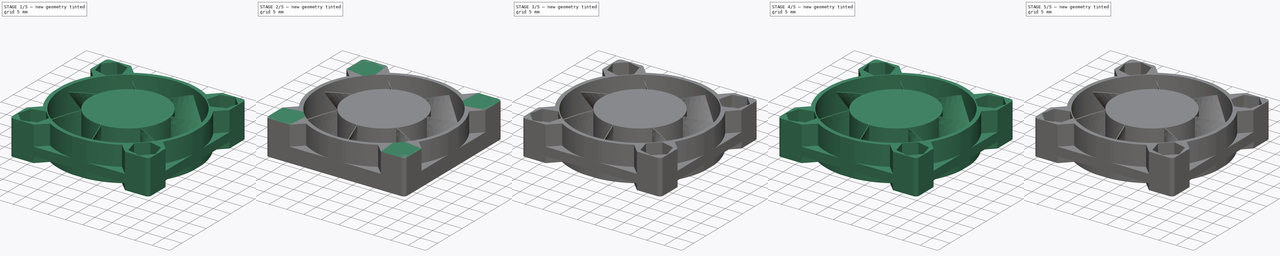
[diagram: build sequence overview — one tinted view per stage of 5, left to right]
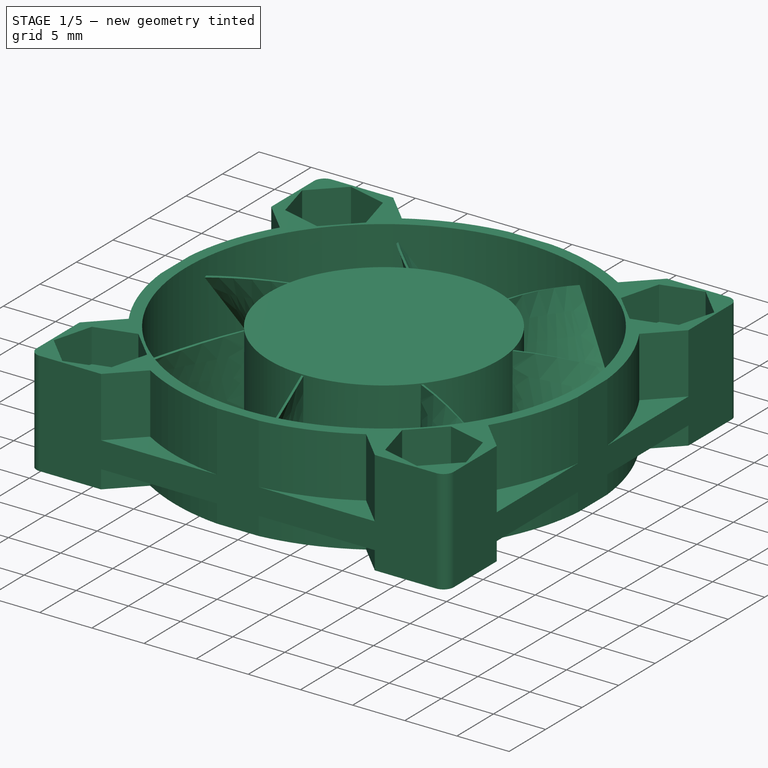
[diagram: stage 1 of 5 — iso view after this stage's code; geometry added in this stage tinted green]
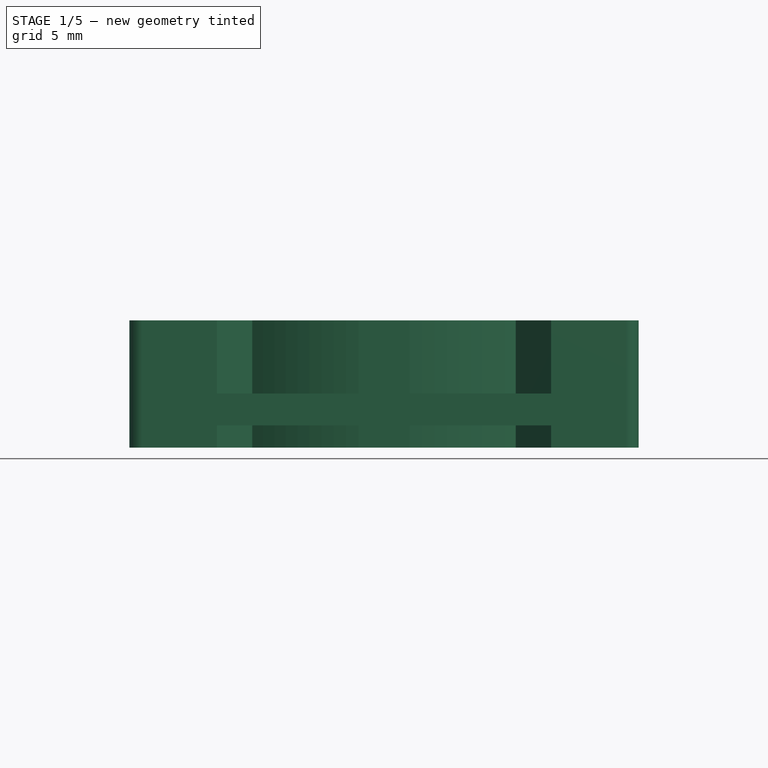
[diagram: stage 1 of 5 — front view after this stage's code; geometry added in this stage tinted green]
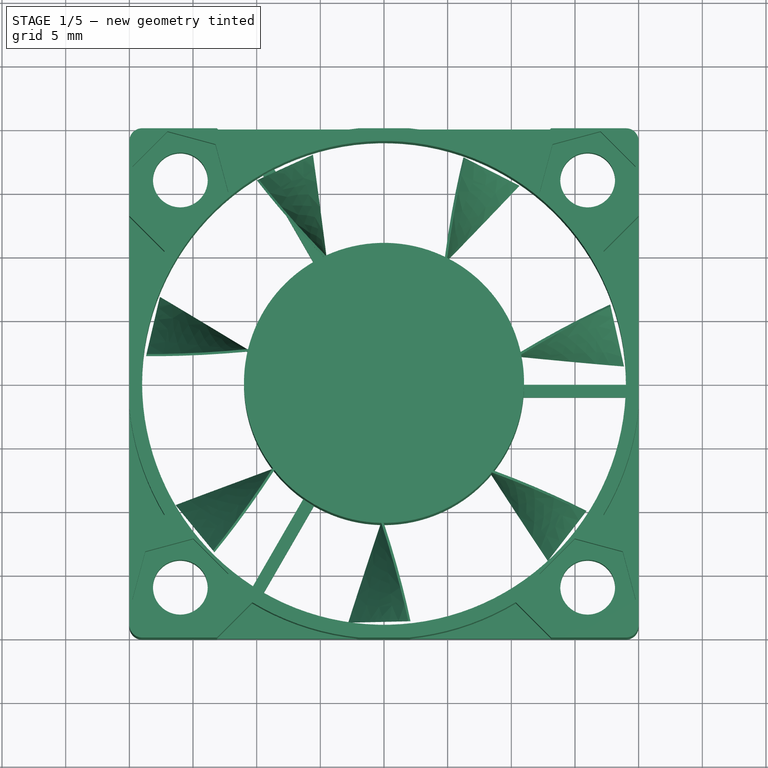
[diagram: stage 1 of 5 — top view after this stage's code; geometry added in this stage tinted green]
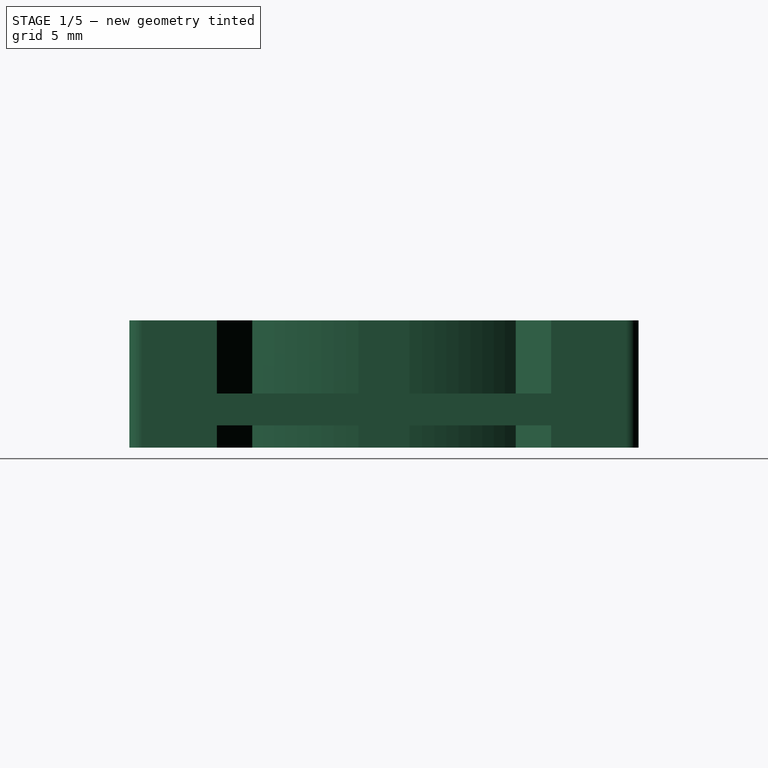
[diagram: stage 1 of 5 — right view after this stage's code; geometry added in this stage tinted green]
FCSTD DOCUMENT  (FreeCAD 0.14R3310 (Git))
Label: 80. VENTILADOR 40X40 (HOTEND)
License: CC-BY 3.0
LicenseURL: http://creativecommons.org/licenses/by/3.0/
objects: Sketcher::SketchObject×11, PartDesign::PolarPattern×6, PartDesign::Pocket×6, Part::Feature×5, PartDesign::Pad×4, App::DocumentObjectGroup×3, Part::MultiFuse×2, Part::Helix×1, Part::Sweep×1, Part::FeaturePython×1
note: 47 computed .brp shape members not serialized (recipe doc carries the construction recipe); baked Part::Feature solids carry a one-line shape summary decoded from their .brp

FEATURE [App::DocumentObjectGroup] Group  label="blade-src"
  Group = -> [Helix,Sweep,Fusion]
FEATURE [Sketcher::SketchObject] Sketch002  label="hub-main-base-sketch"
  sketch-geometry (1):
    g0: Circle CenterX=0 CenterY=0 CenterZ=0 NormalX=0 NormalY=0 NormalZ=1 Radius=11
  constraints (2):
    c: Coincident(g0,g-1)
    c: Radius(g0) = 11
FEATURE [PartDesign::Pad] Pad001  label="hub-main-base"
  Length = 1.8
  Length2 = 100
  Sketch = -> Sketch002
  Type = 0
FEATURE [Sketcher::SketchObject] Sketch003  label="support-arm-sketch"
  ExternalGeometry = -> [Pad001]
  Placement = pos=(0,0,1.8) rot=(0,0,1;0rad)
  Support = -> Pad001 [Face3]
  sketch-geometry (5):
    g0: LineSegment StartX=10.9 StartY=0 StartZ=0 EndX=19 EndY=0 EndZ=0
    g1: LineSegment StartX=19 StartY=0 StartZ=0 EndX=19 EndY=-1 EndZ=0
    g2: LineSegment StartX=19 StartY=-1 StartZ=0 EndX=10.9 EndY=-1 EndZ=0
    g3: GeomPoint [constr] X=11 Y=0 Z=0
    g4: LineSegment StartX=10.9 StartY=-1 StartZ=0 EndX=10.9 EndY=0 EndZ=0
  constraints (14):
    c: Horizontal(g0)
    c: Coincident(g0,g1)
    c: Vertical(g1)
    c: Coincident(g1,g2)
    c: Horizontal(g2)
    c: Equal(g2,g0)
    c: DistanceY(g1) = -1
    c: DistanceX(g2) = -8.1
    c: PointOnObject(g0,g-1)
    c: PointOnObject(g3,g0)
    c: PointOnObject(g3,g-3)
    c: DistanceX(g0,g3) = 0.1
    c: Coincident(g4,g2)
    c: Coincident(g4,g0)
FEATURE [PartDesign::Pad] Pad002  label="support-arm"
  Length = 1.8
  Length2 = 100
  Reversed = true
  Sketch = -> Sketch003
  Type = 0
FEATURE [PartDesign::PolarPattern] PolarPattern  label="support-arms-array"
  Angle = 360
  Axis = -> Sketch003 [N_Axis]
  Occurrences = 3
  Originals = -> [Pad002]
FEATURE [App::DocumentObjectGroup] Group001  label="fan-cover-src"
  Group = -> [Pad003,Pocket,Pocket001,PolarPattern001,Pocket002,PolarPattern002,Pocket003,PolarPattern003,Pocket004,PolarPattern004,Pocket005,PolarPattern005]
FEATURE [Part::Feature] PolarPattern006  label="fan-cover"
  shape: bbox 40 x 40 x 10 mm, 119 faces (baked)
FEATURE [App::DocumentObjectGroup] Group002  label="support-arms-src"
  Group = -> [Pad001,Pad002,PolarPattern]
FEATURE [Part::Feature] PolarPattern007  label="support-arms-array001"
  shape: bbox 30 x 33.41 x 1.8 mm, 14 faces (baked)
FEATURE [Part::Feature] Fusion001  label="blades001"
  Placement = pos=(0,0,1.8) rot=(0,0,1;0rad)
  shape: bbox 37.54 x 36.76 x 8.312 mm, 38 faces (baked)
FEATURE [Part::MultiFuse] Fusion002  label="fan-40x40mm"
  Shapes = -> [PolarPattern006,PolarPattern007,Fusion001]
FEATURE [Part::Feature] Fusion003  label="fan-40x40mm-final"
  shape: bbox 40 x 40 x 10 mm, 172 faces (baked)
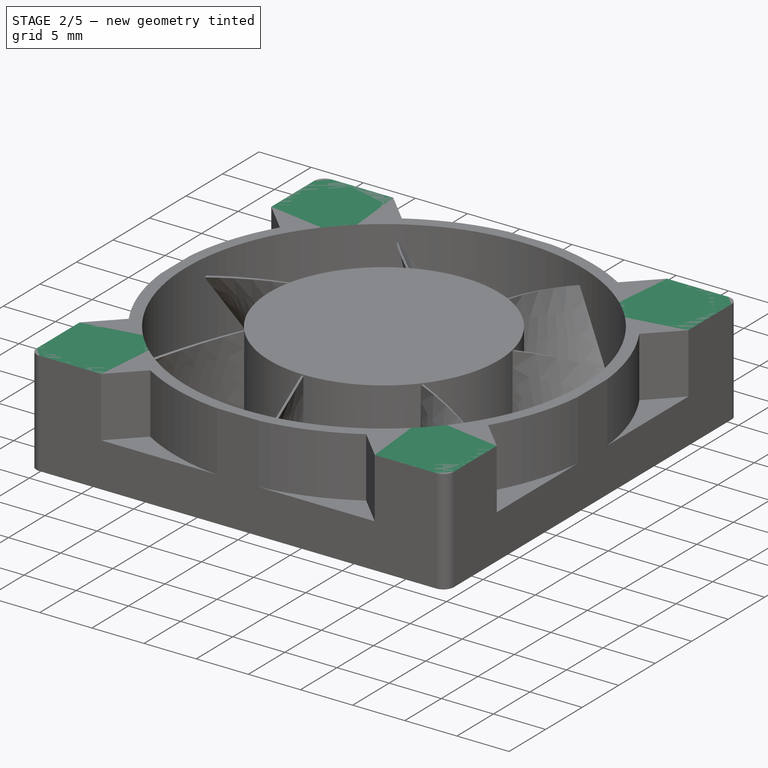
[diagram: stage 2 of 5 — iso view after this stage's code; geometry added in this stage tinted green]
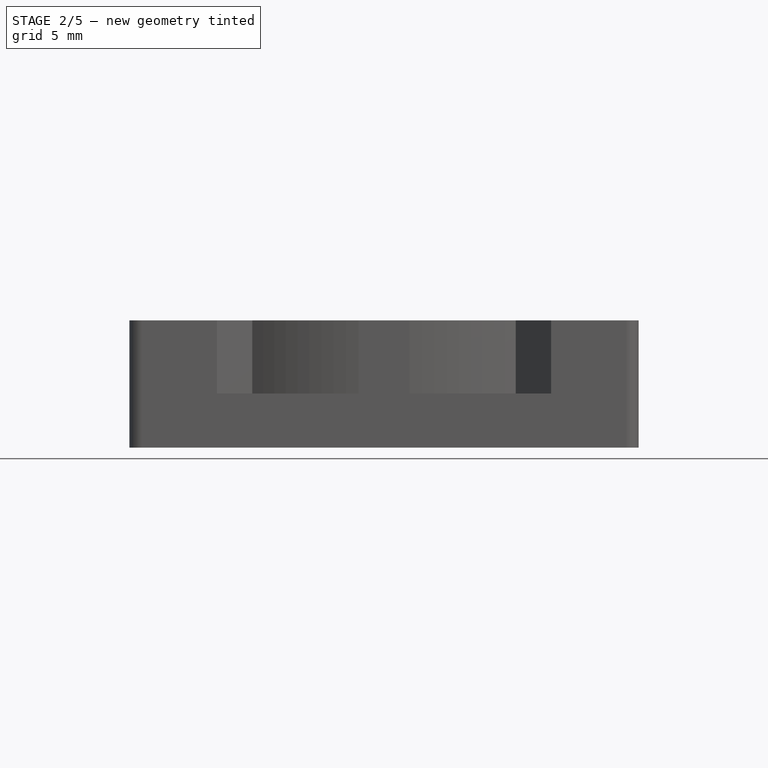
[diagram: stage 2 of 5 — front view after this stage's code; geometry added in this stage tinted green]
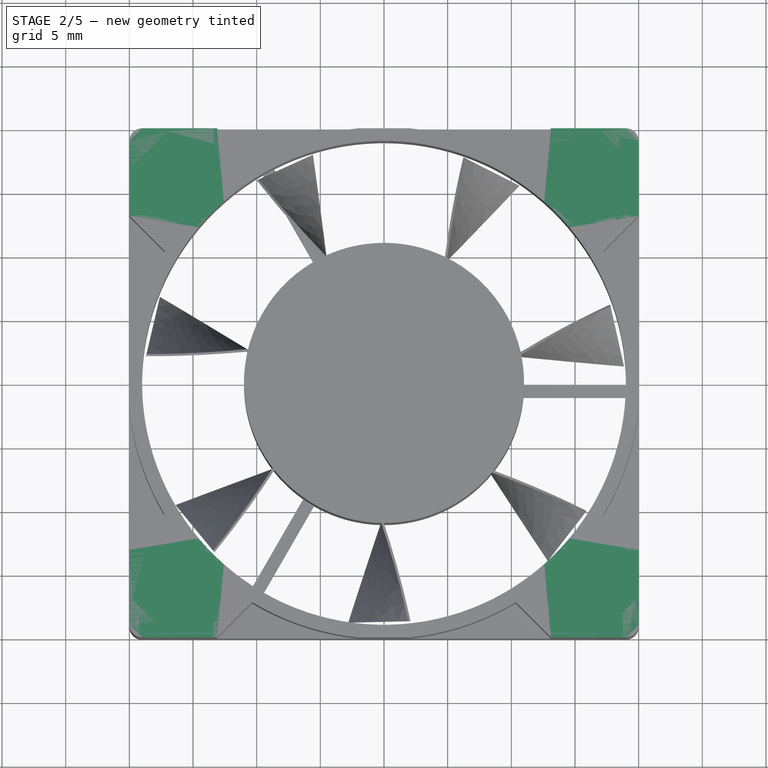
[diagram: stage 2 of 5 — top view after this stage's code; geometry added in this stage tinted green]
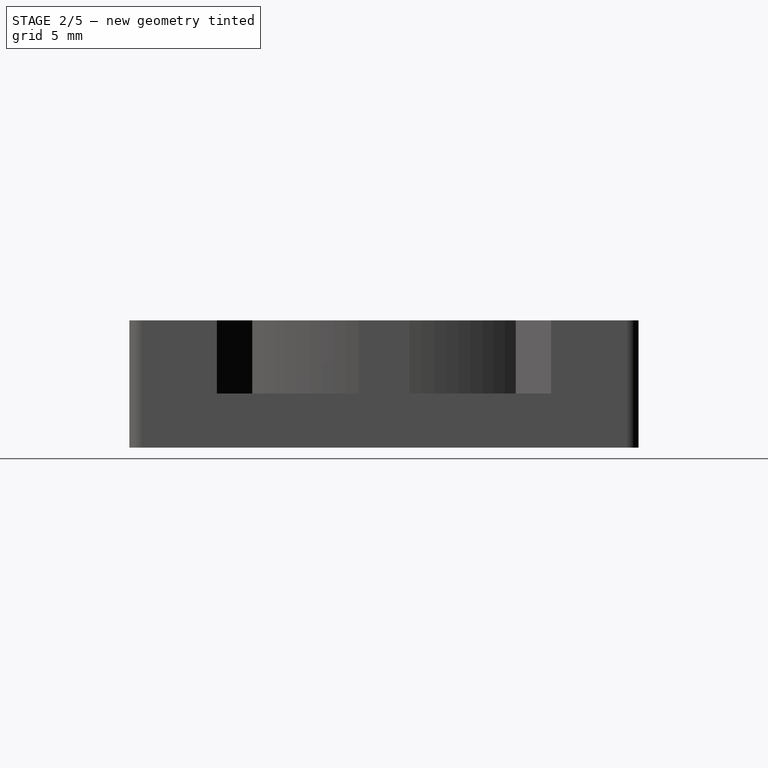
[diagram: stage 2 of 5 — right view after this stage's code; geometry added in this stage tinted green]
FEATURE [Sketcher::SketchObject] Sketch004  label="case-main-body-sketch"
  sketch-geometry (8):
    g0: LineSegment StartX=-19 StartY=20 StartZ=0 EndX=19 EndY=20 EndZ=0
    g1: LineSegment StartX=20 StartY=19 StartZ=0 EndX=20 EndY=-19 EndZ=0
    g2: LineSegment StartX=19 StartY=-20 StartZ=0 EndX=-19 EndY=-20 EndZ=0
    g3: LineSegment StartX=-20 StartY=-19 StartZ=0 EndX=-20 EndY=19 EndZ=0
    g4: ArcOfCircle CenterX=-19 CenterY=19 CenterZ=0 NormalX=0 NormalY=0 NormalZ=1 Radius=1 StartAngle=1.5708 EndAngle=3.14159
    g5: ArcOfCircle CenterX=19 CenterY=19 CenterZ=0 NormalX=0 NormalY=0 NormalZ=1 Radius=1 StartAngle=0 EndAngle=1.5708
    g6: ArcOfCircle CenterX=-19 CenterY=-19 CenterZ=0 NormalX=0 NormalY=0 NormalZ=1 Radius=1 StartAngle=3.14159 EndAngle=4.71239
    g7: ArcOfCircle CenterX=19 CenterY=-19 CenterZ=0 NormalX=0 NormalY=0 NormalZ=1 Radius=1 StartAngle=4.71239 EndAngle=6.28319
  constraints (20):
    c: Horizontal(g0)
    c: Horizontal(g2)
    c: Vertical(g1)
    c: Vertical(g3)
    c: Equal(g0,g3)
    c: Tangent(g0,g4)
    c: Tangent(g3,g4)
    c: Radius(g4) = 1
    c: Tangent(g0,g5)
    c: Tangent(g1,g5)
    c: Equal(g5,g4)
    c: DistanceX(g3,g1) = 40
    c: Tangent(g2,g6)
    c: Tangent(g3,g6)
    c: Tangent(g1,g7)
    c: Tangent(g2,g7)
    c: Equal(g6,g7)
    c: Equal(g7,g5)
    c: Equal(g3,g0)
    c: Symmetric(g4,g7,g-1)
FEATURE [PartDesign::Pad] Pad003  label="case-main-body"
  Length = 10
  Length2 = 100
  Sketch = -> Sketch004
  Type = 0
FEATURE [Sketcher::SketchObject] Sketch005  label="case-cutout-1-sketch"
  Placement = pos=(0,0,10) rot=(0,0,1;0rad)
  Support = -> Pad003 [Face10]
  sketch-geometry (1):
    g0: Circle CenterX=0 CenterY=0 CenterZ=0 NormalX=0 NormalY=0 NormalZ=1 Radius=19
  constraints (2):
    c: Coincident(g0,g-1)
    c: Radius(g0) = 19
FEATURE [PartDesign::Pocket] Pocket  label="case-cutout-1"
  Length = 5
  Sketch = -> Sketch005
  Type = 1
FEATURE [Sketcher::SketchObject] Sketch006  label="case-cutout-2-sketch"
  ExternalGeometry = -> [Pocket]
  Placement = pos=(0,0,10) rot=(0,0,1;0rad)
  Support = -> Pocket [Face5]
  sketch-geometry (7):
    g0: Circle [constr] CenterX=0 CenterY=0 CenterZ=0 NormalX=0 NormalY=0 NormalZ=1 Radius=20.1
    g1: LineSegment StartX=-17.2291 StartY=10.3523 StartZ=0 EndX=-23 EndY=16.1232 EndZ=0
    g2: LineSegment StartX=-23 StartY=16.1232 StartZ=0 EndX=-23 EndY=-16.1232 EndZ=0
    g3: LineSegment [constr] StartX=-22.2291 StartY=10.3523 StartZ=0 EndX=-17.2291 EndY=10.3523 EndZ=0
    g4: LineSegment [constr] StartX=-17.2291 StartY=10.3523 StartZ=0 EndX=0 EndY=0 EndZ=0
    g5: LineSegment StartX=-23 StartY=-16.1232 StartZ=0 EndX=-17.2291 EndY=-10.3523 EndZ=0
    g6: ArcOfCircle CenterX=0 CenterY=0 CenterZ=0 NormalX=0 NormalY=0 NormalZ=1 Radius=20.1 StartAngle=2.60054 EndAngle=3.68264
  constraints (19):
    c: Coincident(g0,g-1)
    c: Radius(g0) = 20.1
    c: Vertical(g2)
    c: PointOnObject(g1,g0)
    c: Horizontal(g3)
    c: Coincident(g3,g1)
    c: Coincident(g4,g-1)
    c: Coincident(g4,g1)
    c: Angle(g-1,g4) = 2.60054
    c: DistanceX(g3) = 5
    c: Angle(g1,g3) = 0.785398
    c: Coincident(g2,g1)
    c: DistanceX(g-3,g1) = -3
    c: Coincident(g2,g5)
    c: Symmetric(g2,g1,g-1)
    c: Symmetric(g1,g5,g-1)
    c: Coincident(g6,g-1)
    c: Coincident(g6,g1)
    c: Coincident(g6,g5)
FEATURE [PartDesign::Pocket] Pocket001  label="case-cutout-2"
  Length = 5.75
  Sketch = -> Sketch006
  Type = 0
FEATURE [PartDesign::PolarPattern] PolarPattern001  label="case-cutout-2-array"
  Angle = 360
  Axis = -> Sketch006 [N_Axis]
  Occurrences = 4
  Originals = -> [Pocket001]
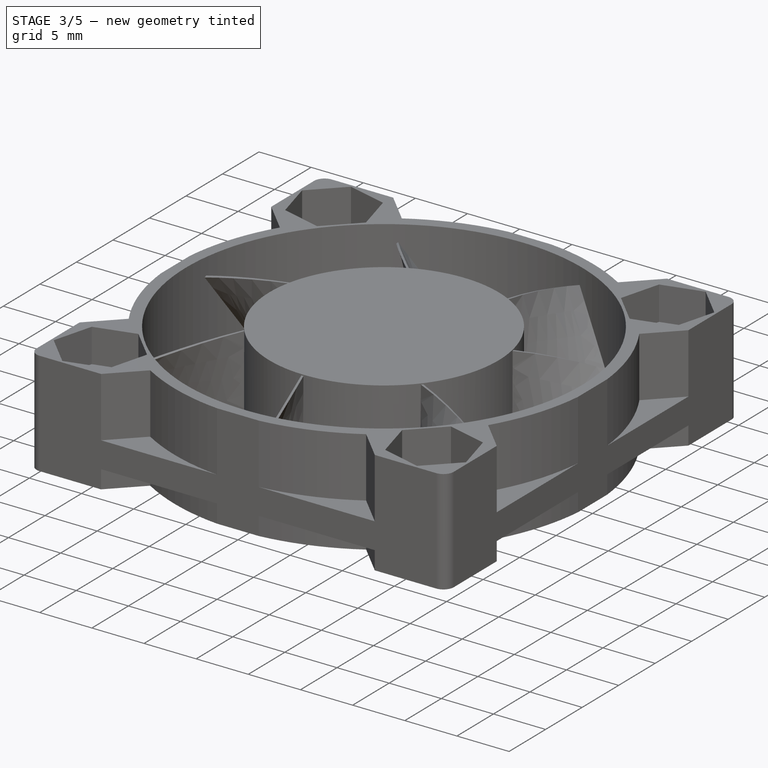
[diagram: stage 3 of 5 — iso view after this stage's code; geometry added in this stage tinted green]
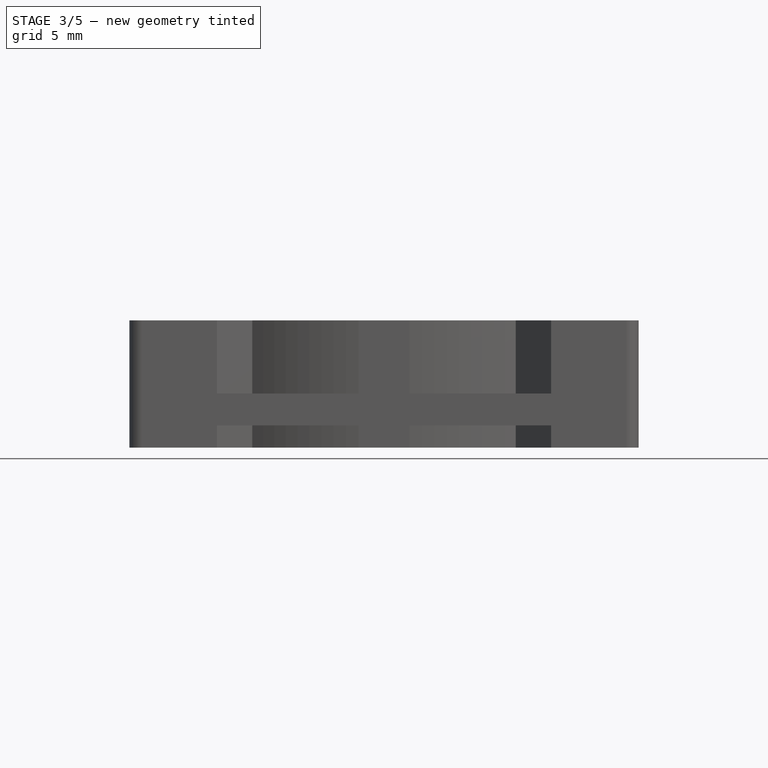
[diagram: stage 3 of 5 — front view after this stage's code; geometry added in this stage tinted green]
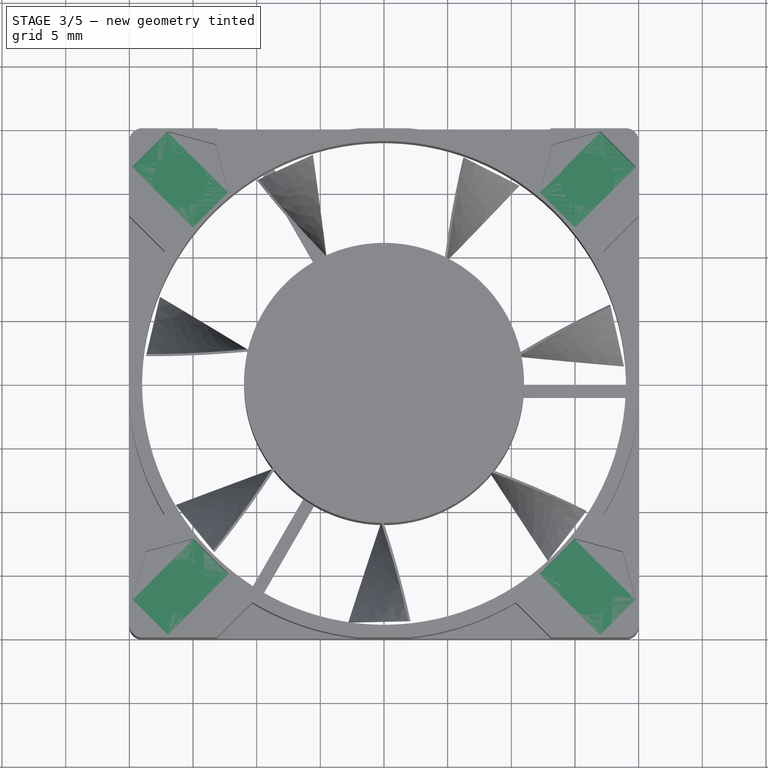
[diagram: stage 3 of 5 — top view after this stage's code; geometry added in this stage tinted green]
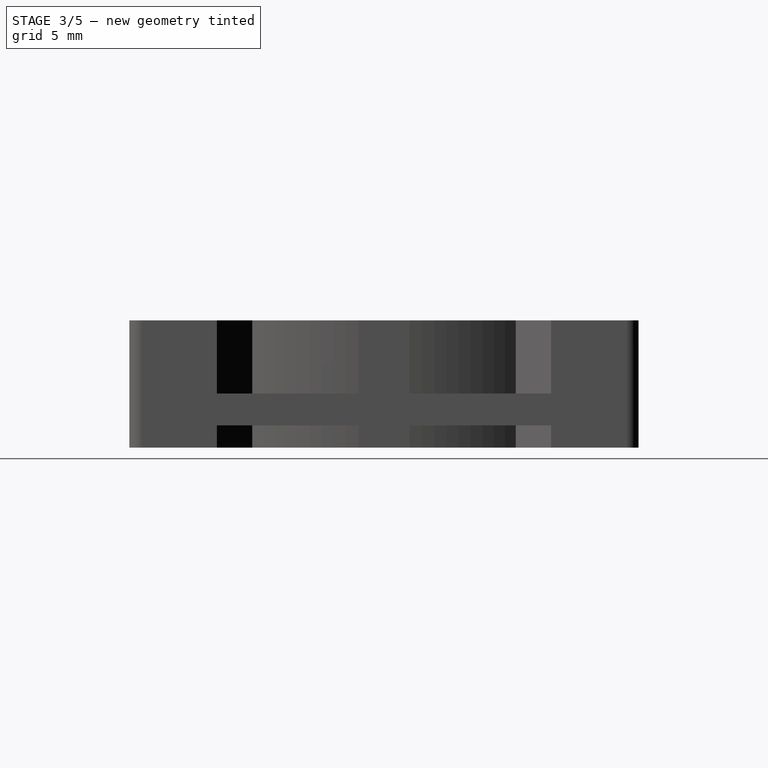
[diagram: stage 3 of 5 — right view after this stage's code; geometry added in this stage tinted green]
FEATURE [Sketcher::SketchObject] Sketch007  label="case-cutout-3-sketch"
  ExternalGeometry = -> [PolarPattern001]
  Placement = pos=(0,0,0) rot=(1,0,0;3.14159rad)
  Support = -> PolarPattern001 [Face2]
  sketch-geometry (7):
    g0: Circle [constr] CenterX=0 CenterY=0 CenterZ=0 NormalX=0 NormalY=0 NormalZ=1 Radius=20.1
    g1: LineSegment StartX=-17.2291 StartY=10.3523 StartZ=0 EndX=-21 EndY=14.1232 EndZ=0
    g2: LineSegment StartX=-21 StartY=14.1232 StartZ=0 EndX=-21 EndY=-14.1232 EndZ=0
    g3: LineSegment [constr] StartX=-22.2291 StartY=10.3523 StartZ=0 EndX=-17.2291 EndY=10.3523 EndZ=0
    g4: LineSegment [constr] StartX=-17.2291 StartY=10.3523 StartZ=0 EndX=0 EndY=0 EndZ=0
    g5: LineSegment StartX=-21 StartY=-14.1232 StartZ=0 EndX=-17.2291 EndY=-10.3523 EndZ=0
    g6: ArcOfCircle CenterX=0 CenterY=0 CenterZ=0 NormalX=0 NormalY=0 NormalZ=1 Radius=20.1 StartAngle=2.60054 EndAngle=3.68264
  constraints (19):
    c: Coincident(g0,g-1)
    c: Radius(g0) = 20.1
    c: Vertical(g2)
    c: PointOnObject(g1,g0)
    c: Horizontal(g3)
    c: Coincident(g3,g1)
    c: Coincident(g4,g-1)
    c: Coincident(g4,g1)
    c: Angle(g-1,g4) = 2.60054
    c: DistanceX(g3) = 5
    c: Angle(g1,g3) = 0.785398
    c: Coincident(g2,g1)
    c: Coincident(g2,g5)
    c: Symmetric(g2,g1,g-1)
    c: Symmetric(g1,g5,g-1)
    c: Coincident(g6,g-1)
    c: Coincident(g6,g1)
    c: Coincident(g6,g5)
    c: DistanceX(g1,g-3) = 1
FEATURE [PartDesign::Pocket] Pocket002  label="case-cutout-3"
  Length = 1.75
  Sketch = -> Sketch007
  Type = 0
FEATURE [PartDesign::PolarPattern] PolarPattern002  label="case-cutout-3-array"
  Angle = 360
  Axis = -> Sketch007 [N_Axis]
  Occurrences = 4
  Originals = -> [Pocket002]
FEATURE [Sketcher::SketchObject] Sketch008  label="top-nut-cutout-sketch"
  Placement = pos=(0,0,10) rot=(0,0,1;0rad)
  Support = -> PolarPattern002 [Face10]
  sketch-geometry (9):
    g0: LineSegment [constr] StartX=-15.9948 StartY=15.9948 StartZ=0 EndX=0 EndY=0 EndZ=0
    g1: LineSegment [constr] StartX=-15.9948 StartY=15.9948 StartZ=0 EndX=-13.237 EndY=18.7525 EndZ=0
    g2: LineSegment [constr] StartX=-15.9948 StartY=15.9948 StartZ=0 EndX=-12.2276 EndY=14.9854 EndZ=0
    g3: LineSegment StartX=-13.237 StartY=18.7525 StartZ=0 EndX=-12.2276 EndY=14.9854 EndZ=0
    g4: LineSegment StartX=-13.237 StartY=18.7525 StartZ=0 EndX=-17.0041 EndY=19.7619 EndZ=0
    g5: LineSegment StartX=-17.0041 StartY=19.7619 StartZ=0 EndX=-19.7619 EndY=17.0041 EndZ=0
    g6: LineSegment StartX=-12.2276 StartY=14.9854 StartZ=0 EndX=-14.9854 EndY=12.2276 EndZ=0
    g7: LineSegment StartX=-14.9854 StartY=12.2276 StartZ=0 EndX=-18.7525 EndY=13.237 EndZ=0
    g8: LineSegment StartX=-19.7619 StartY=17.0041 StartZ=0 EndX=-18.7525 EndY=13.237 EndZ=0
  constraints (22):
    c: Coincident(g0,g-1)
    c: Angle(g-1,g0) = 2.35619
    c: Distance(g0) = 22.62
    c: PointOnObject(g0,g1)
    c: Perpendicular(g1,g0)
    c: Coincident(g1,g0)
    c: Coincident(g2,g0)
    c: Equal(g1,g2)
    c: Angle(g2,g1) = 1.0472
    c: Coincident(g3,g2)
    c: Coincident(g3,g1)
    c: Distance(g1) = 3.9
    c: Coincident(g4,g1)
    c: Symmetric(g4,g2,g1)
    c: Coincident(g5,g4)
    c: Symmetric(g4,g5,g0)
    c: Coincident(g6,g2)
    c: Symmetric(g6,g2,g0)
    c: Coincident(g7,g6)
    c: Symmetric(g7,g1,g0)
    c: Coincident(g8,g7)
    c: Coincident(g8,g5)
FEATURE [PartDesign::Pocket] Pocket003  label="top-nut-cutout"
  Length = 3.24
  Sketch = -> Sketch008
  Type = 0
FEATURE [PartDesign::PolarPattern] PolarPattern003  label="top-nut-cutouts-array"
  Angle = 360
  Axis = -> Sketch008 [N_Axis]
  Occurrences = 4
  Originals = -> [Pocket003]
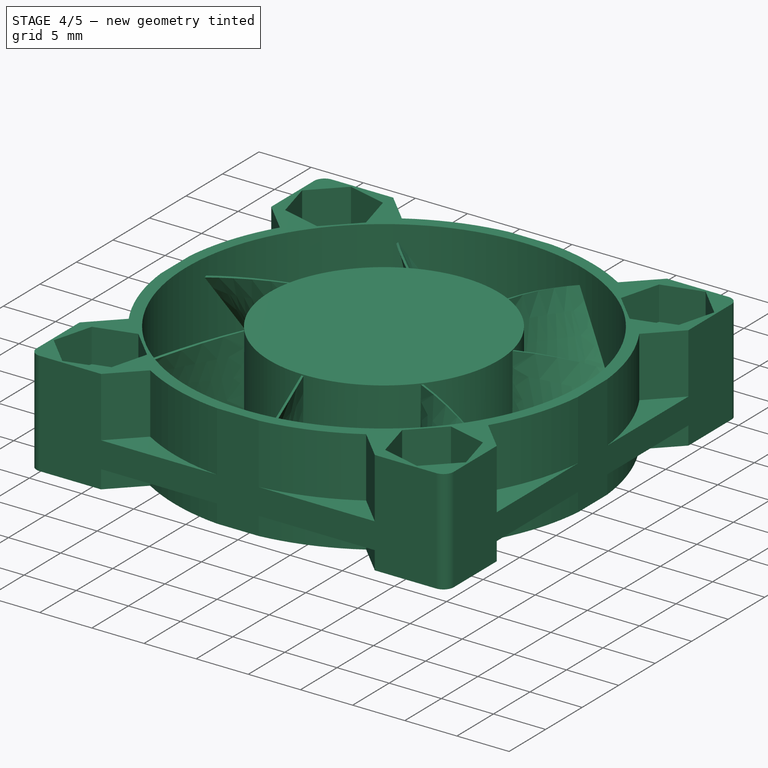
[diagram: stage 4 of 5 — iso view after this stage's code; geometry added in this stage tinted green]
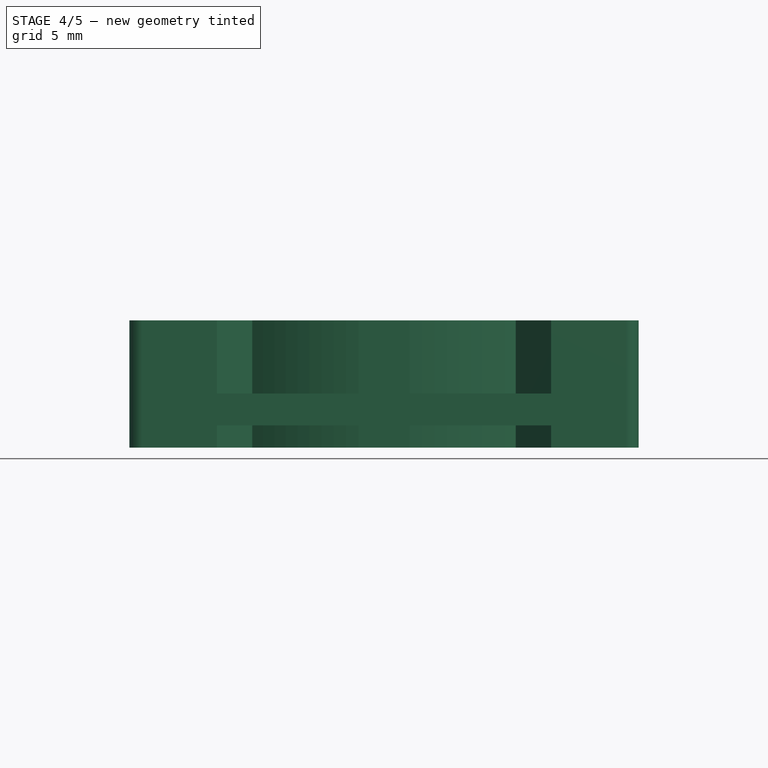
[diagram: stage 4 of 5 — front view after this stage's code; geometry added in this stage tinted green]
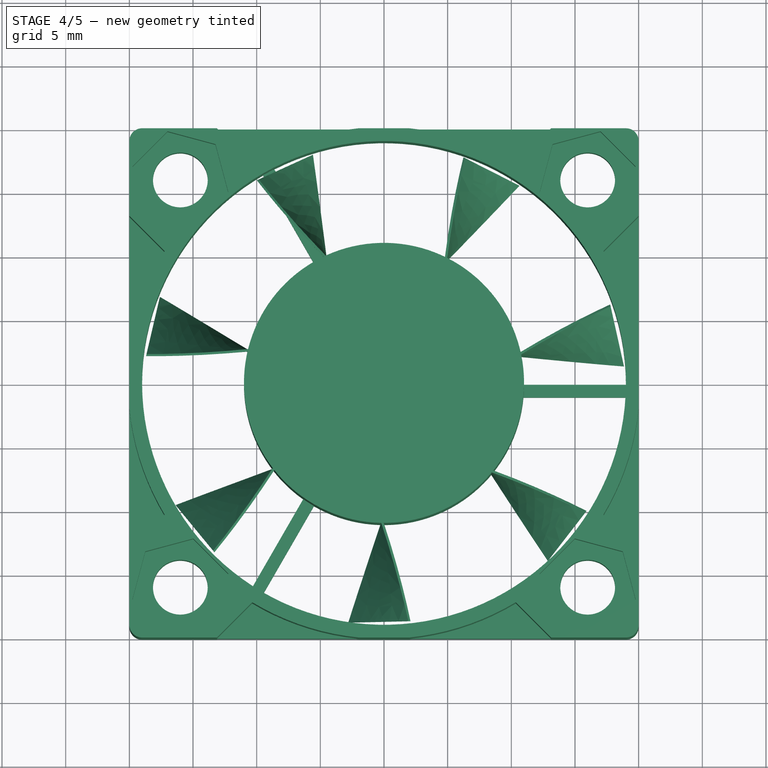
[diagram: stage 4 of 5 — top view after this stage's code; geometry added in this stage tinted green]
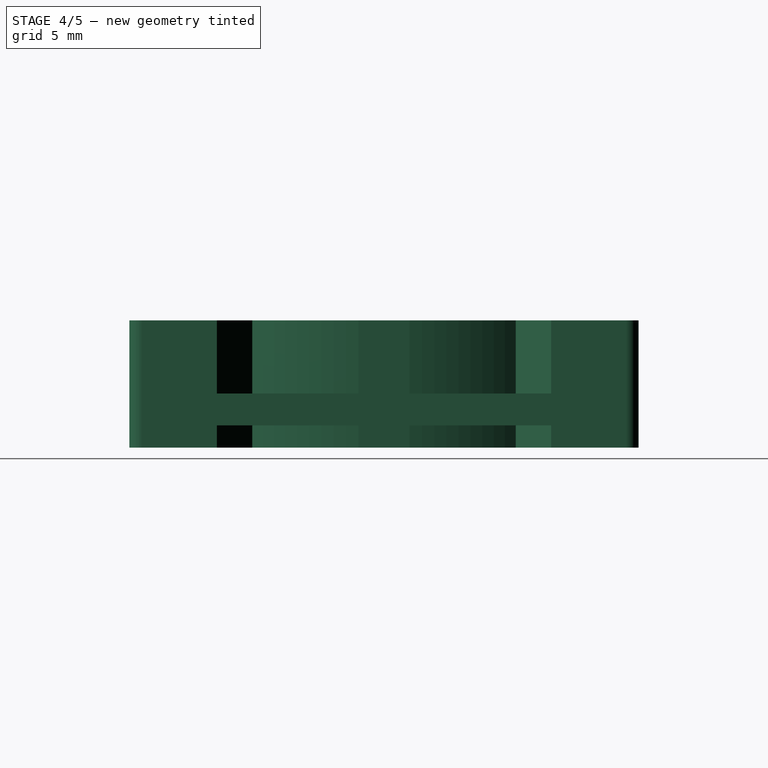
[diagram: stage 4 of 5 — right view after this stage's code; geometry added in this stage tinted green]
FEATURE [Sketcher::SketchObject] Sketch009  label="bottom-nut-cutout-sketch001"
  Placement = pos=(0,0,0) rot=(1,0,0;3.14159rad)
  Support = -> PolarPattern003 [Face2]
  sketch-geometry (9):
    g0: LineSegment [constr] StartX=-15.9948 StartY=15.9948 StartZ=0 EndX=0 EndY=0 EndZ=0
    g1: LineSegment [constr] StartX=-15.9948 StartY=15.9948 StartZ=0 EndX=-13.237 EndY=18.7525 EndZ=0
    g2: LineSegment [constr] StartX=-15.9948 StartY=15.9948 StartZ=0 EndX=-12.2276 EndY=14.9854 EndZ=0
    g3: LineSegment StartX=-13.237 StartY=18.7525 StartZ=0 EndX=-12.2276 EndY=14.9854 EndZ=0
    g4: LineSegment StartX=-13.237 StartY=18.7525 StartZ=0 EndX=-17.0041 EndY=19.7619 EndZ=0
    g5: LineSegment StartX=-17.0041 StartY=19.7619 StartZ=0 EndX=-19.7619 EndY=17.0041 EndZ=0
    g6: LineSegment StartX=-12.2276 StartY=14.9854 StartZ=0 EndX=-14.9854 EndY=12.2276 EndZ=0
    g7: LineSegment StartX=-14.9854 StartY=12.2276 StartZ=0 EndX=-18.7525 EndY=13.237 EndZ=0
    g8: LineSegment StartX=-19.7619 StartY=17.0041 StartZ=0 EndX=-18.7525 EndY=13.237 EndZ=0
  constraints (22):
    c: Coincident(g0,g-1)
    c: Angle(g-1,g0) = 2.35619
    c: Distance(g0) = 22.62
    c: PointOnObject(g0,g1)
    c: Perpendicular(g1,g0)
    c: Coincident(g1,g0)
    c: Coincident(g2,g0)
    c: Equal(g1,g2)
    c: Angle(g2,g1) = 1.0472
    c: Coincident(g3,g2)
    c: Coincident(g3,g1)
    c: Distance(g1) = 3.9
    c: Coincident(g4,g1)
    c: Symmetric(g4,g2,g1)
    c: Coincident(g5,g4)
    c: Symmetric(g4,g5,g0)
    c: Coincident(g6,g2)
    c: Symmetric(g6,g2,g0)
    c: Coincident(g7,g6)
    c: Symmetric(g7,g1,g0)
    c: Coincident(g8,g7)
    c: Coincident(g8,g5)
FEATURE [PartDesign::Pocket] Pocket004  label="bottom-nut-cutout"
  Length = 2.21
  Sketch = -> Sketch009
  Type = 0
FEATURE [PartDesign::PolarPattern] PolarPattern004  label="bottom-nut-cutout-array"
  Angle = 360
  Axis = -> Sketch009 [N_Axis]
  Occurrences = 4
  Originals = -> [Pocket004]
FEATURE [Sketcher::SketchObject] Sketch010  label="drill-1-cutout-sketch"
  Placement = pos=(0,0,10) rot=(0,0,1;0rad)
  Support = -> PolarPattern004 [Face10]
  sketch-geometry (2):
    g0: Circle CenterX=-15.9948 CenterY=15.9948 CenterZ=0 NormalX=0 NormalY=0 NormalZ=1 Radius=2.15
    g1: LineSegment [constr] StartX=-15.9948 StartY=15.9948 StartZ=0 EndX=0 EndY=0 EndZ=0
  constraints (5):
    c: Coincident(g1,g-1)
    c: Angle(g-1,g1) = 2.35619
    c: Coincident(g0,g1)
    c: Distance(g1) = 22.62
    c: Radius(g0) = 2.15
FEATURE [PartDesign::Pocket] Pocket005  label="drill-1-cutout"
  Length = 5
  Sketch = -> Sketch010
  Type = 1
FEATURE [PartDesign::PolarPattern] PolarPattern005  label="drills-array"
  Angle = 360
  Axis = -> Sketch010 [N_Axis]
  Occurrences = 4
  Originals = -> [Pocket005]
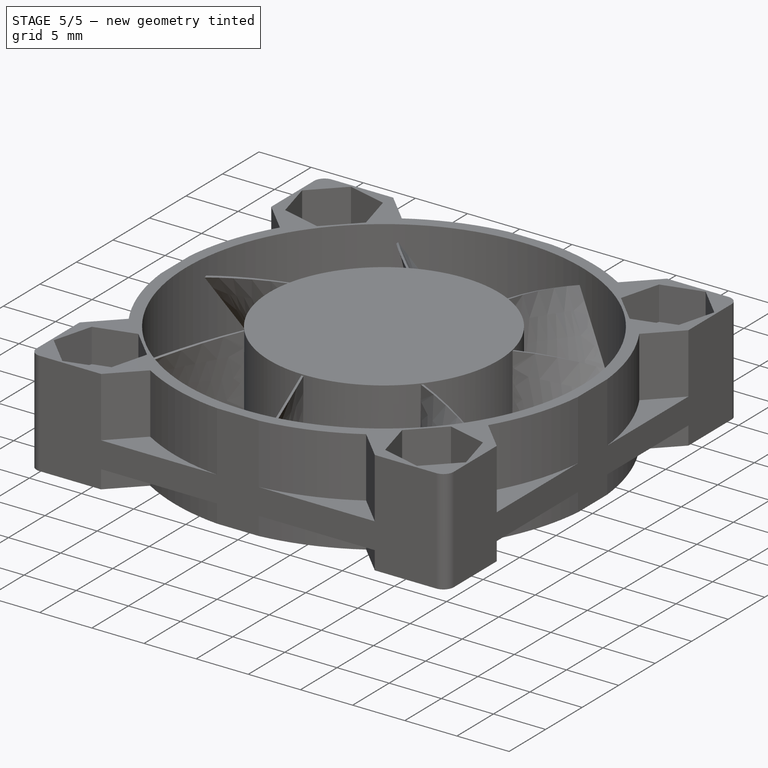
[diagram: stage 5 of 5 — iso view after this stage's code; geometry added in this stage tinted green]
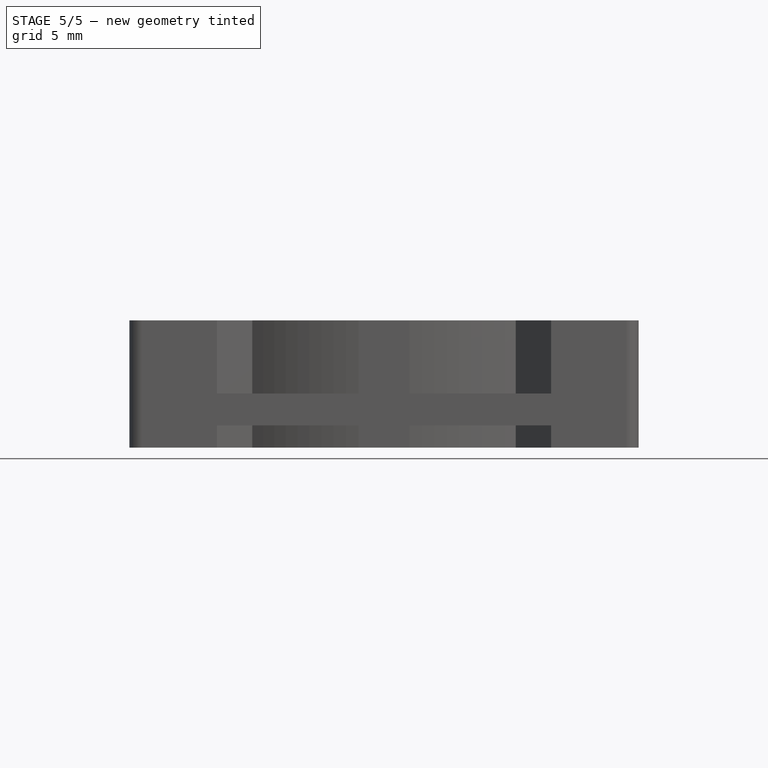
[diagram: stage 5 of 5 — front view after this stage's code; geometry added in this stage tinted green]
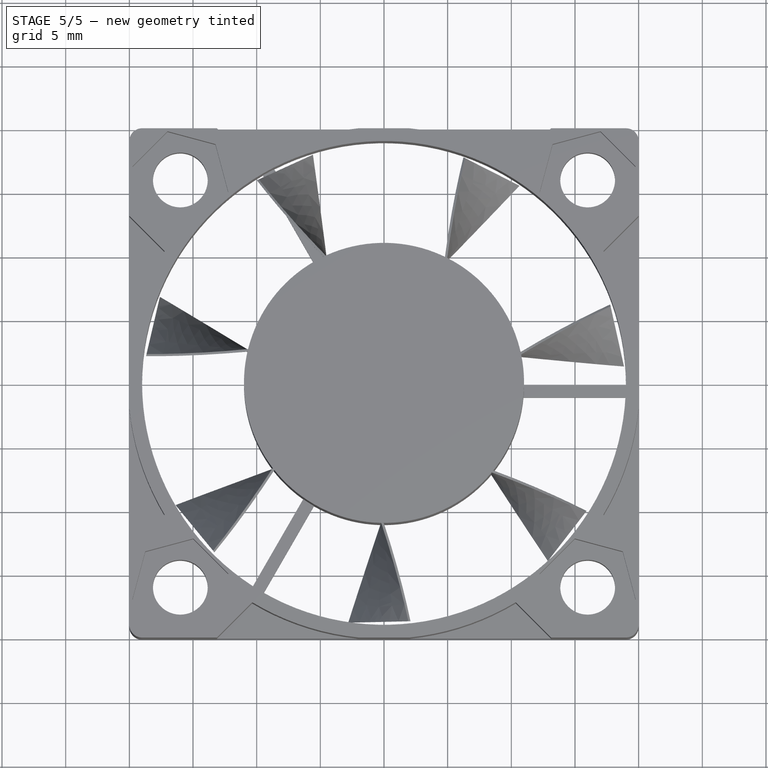
[diagram: stage 5 of 5 — top view after this stage's code; geometry added in this stage tinted green]
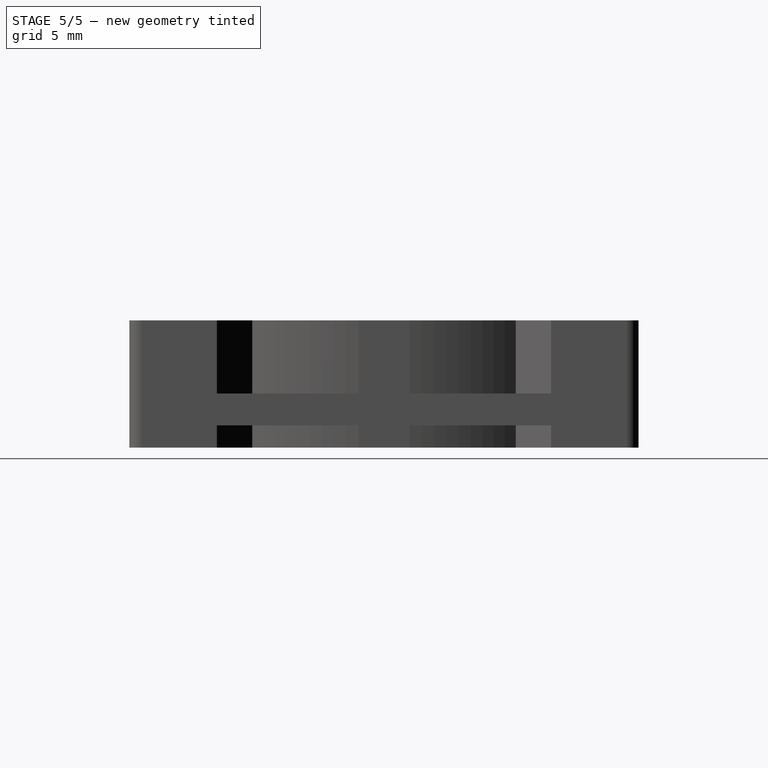
[diagram: stage 5 of 5 — right view after this stage's code; geometry added in this stage tinted green]
FEATURE [Sketcher::SketchObject] Sketch  label="blade-section-sketch"
  sketch-geometry (4):
    g0: LineSegment StartX=0 StartY=4 StartZ=0 EndX=0.2 EndY=4 EndZ=0
    g1: LineSegment StartX=0.2 StartY=4 StartZ=0 EndX=0.2 EndY=-4 EndZ=0
    g2: LineSegment StartX=0.2 StartY=-4 StartZ=0 EndX=0 EndY=-4 EndZ=0
    g3: LineSegment StartX=0 StartY=-4 StartZ=0 EndX=0 EndY=4 EndZ=0
  constraints (12):
    c: Coincident(g0,g1)
    c: Coincident(g1,g2)
    c: Coincident(g2,g3)
    c: Coincident(g3,g0)
    c: Horizontal(g0)
    c: Horizontal(g2)
    c: Vertical(g1)
    c: Vertical(g3)
    c: PointOnObject(g0,g-2)
    c: Symmetric(g0,g2,g-1)
    c: DistanceY(g3) = 8
    c: DistanceX(g0) = 0.2
FEATURE [Part::Helix] Helix
  Angle = 0
  Height = 7.8
  LocalCoord = 1
  Pitch = 78
  Placement = pos=(-1,0,0) rot=(0,0,1;0rad)
  Radius = 1
  Style = 1
FEATURE [Part::Sweep] Sweep  label="blade-orig"
  Frenet = true
  Sections = -> [Sketch]
  Solid = true
  Spine = -> Helix [Edge1]
  Transition = 1
FEATURE [Part::Feature] Sweep001  label="blade-master"
  Placement = pos=(-0.253354,-10.8943,4.1) rot=(1,0,0;1.5708rad)
  shape: bbox 4.889 x 7.8 x 8.212 mm, 6 faces (baked)
FEATURE [Sketcher::SketchObject] Sketch001  label="blade-hub-sketch"
  sketch-geometry (1):
    g0: Circle CenterX=0 CenterY=0 CenterZ=0 NormalX=0 NormalY=0 NormalZ=1 Radius=11
  constraints (2):
    c: Coincident(g0,g-1)
    c: Radius(g0) = 11
FEATURE [PartDesign::Pad] Pad  label="blade-hub"
  Length = 8.2
  Length2 = 100
  Sketch = -> Sketch001
  Type = 0
FEATURE [Part::FeaturePython] Array  label="blades-array"  # Draft array (typed FeaturePython)
  Angle = 360
  ArrayType = 1
  Axis = (0,0,1)
  Base = -> Sweep001
  Center = (0,0,0)
  IntervalX = (1,0,0)
  IntervalY = (0,1,0)
  IntervalZ = (0,0,1)
  NumberPolar = 7
  NumberX = 2
  NumberY = 2
  NumberZ = 1
FEATURE [Part::MultiFuse] Fusion  label="blades"
  Placement = pos=(0,0,1.8) rot=(0,0,1;0rad)
  Shapes = -> [Pad,Array]
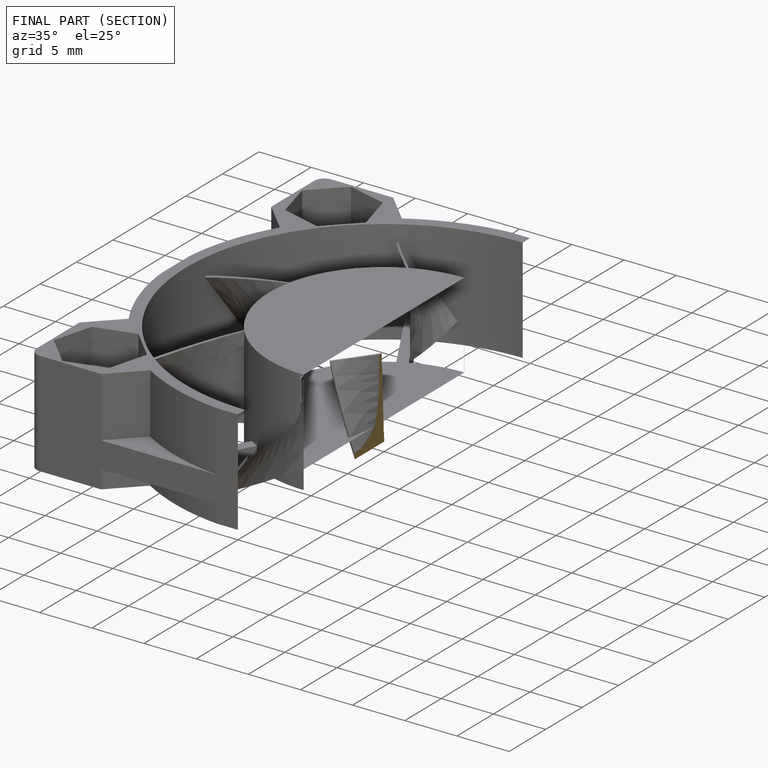
[diagram: finished part — half-section view (interior)]
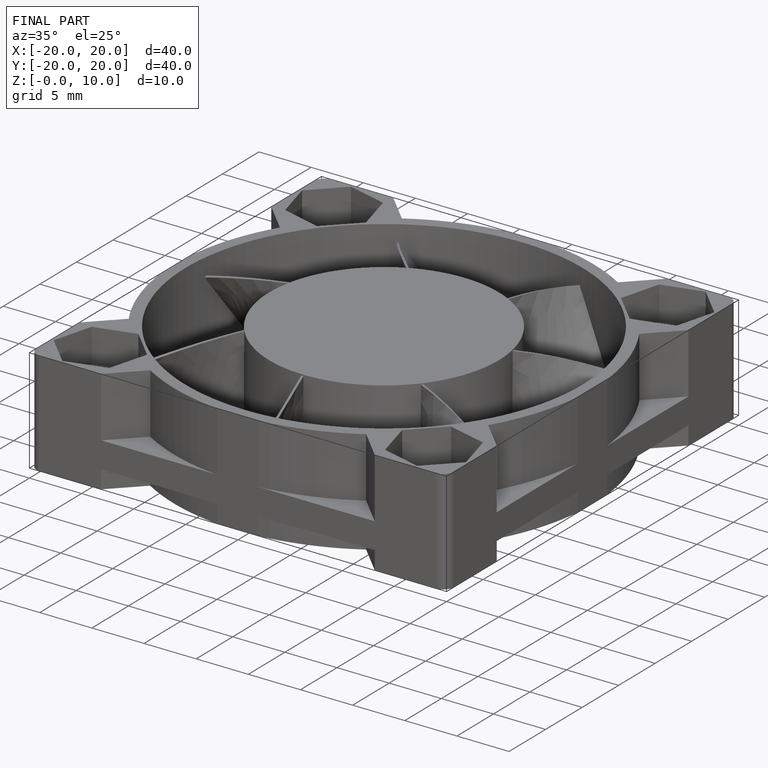
[diagram: finished part — iso view with bounding-box wireframe]
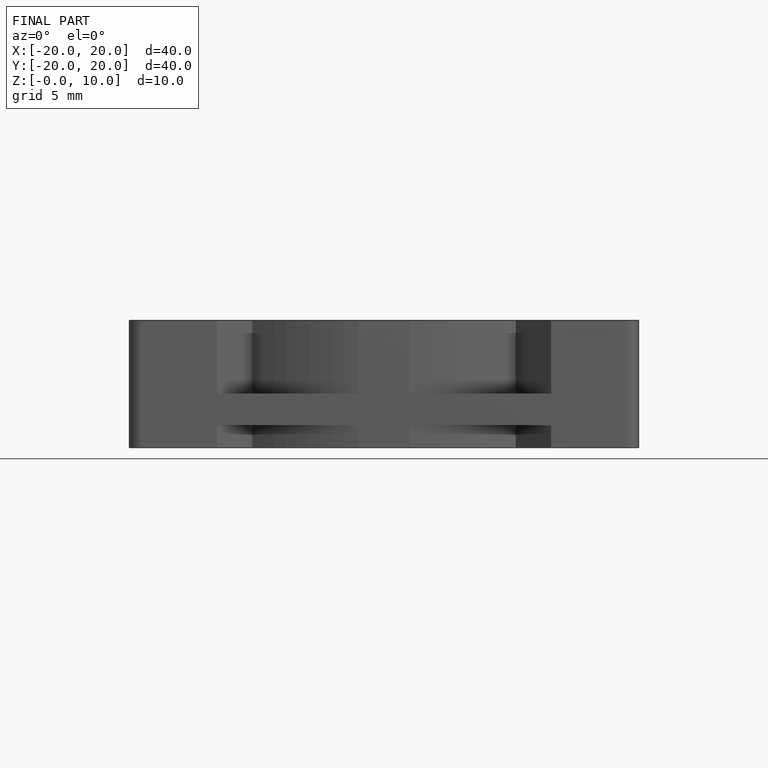
[diagram: finished part — front view with bounding-box wireframe]
